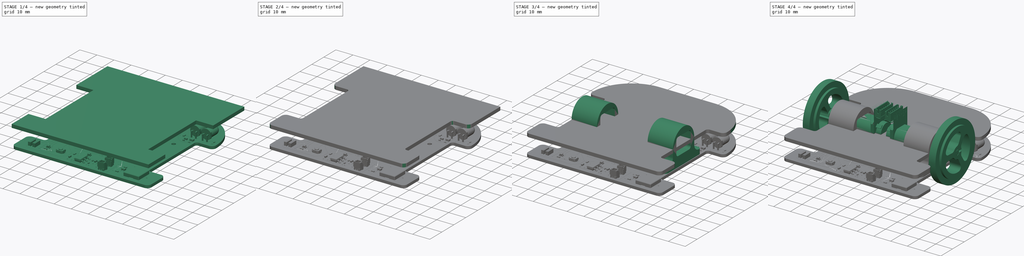
[diagram: build sequence overview — one tinted view per stage of 4, left to right]
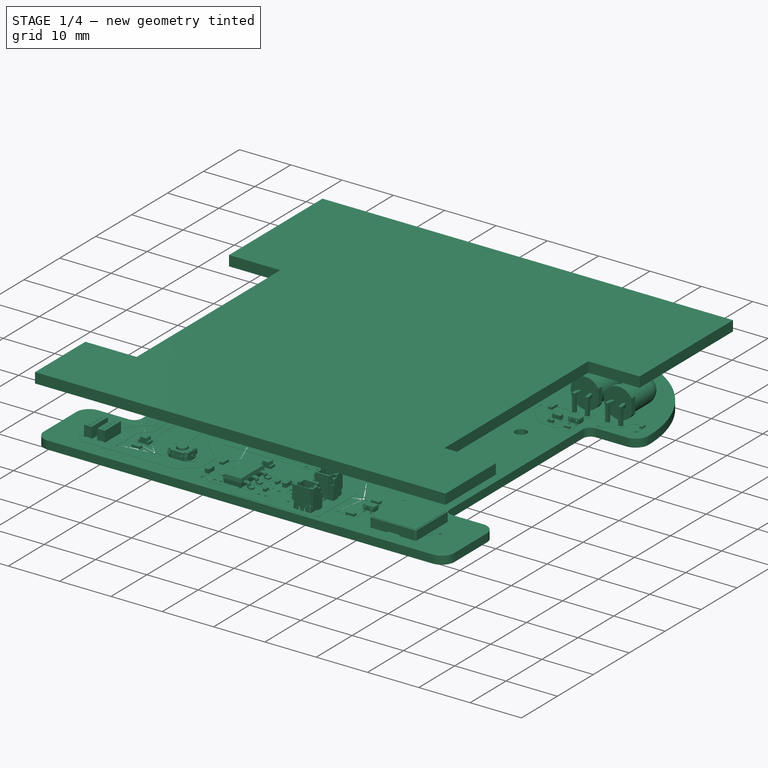
[diagram: stage 1 of 4 — iso view after this stage's code; geometry added in this stage tinted green]
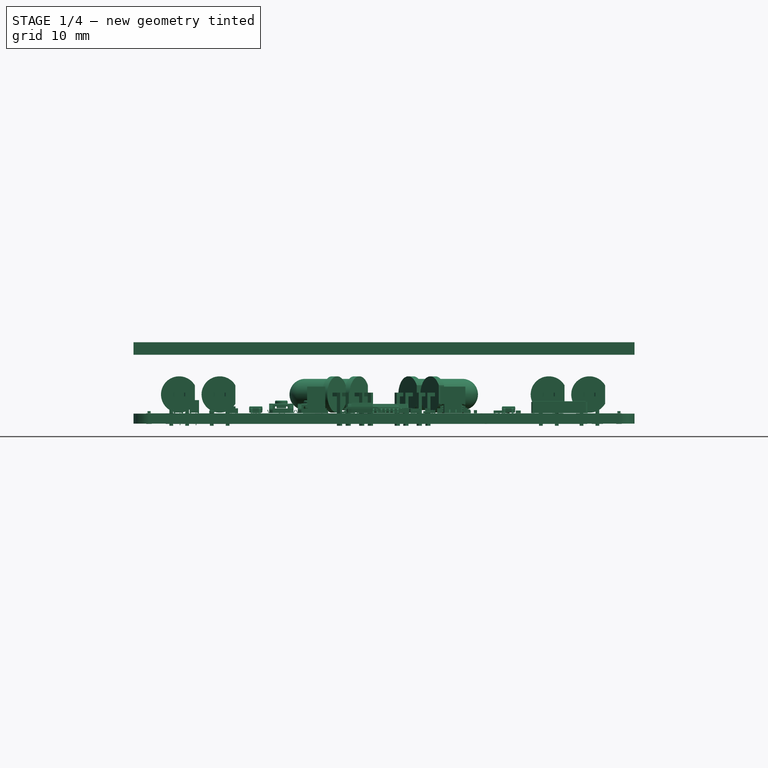
[diagram: stage 1 of 4 — front view after this stage's code; geometry added in this stage tinted green]
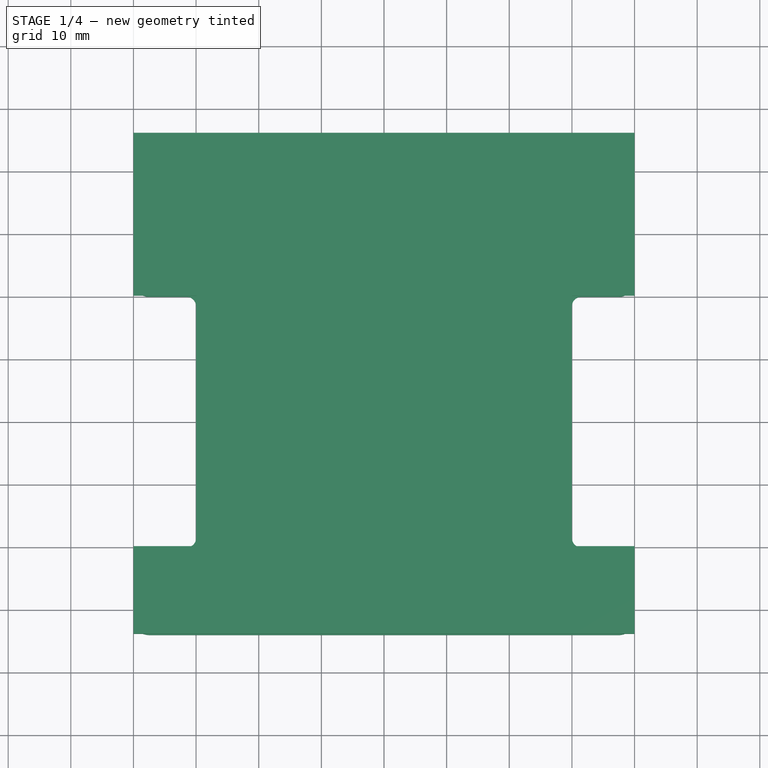
[diagram: stage 1 of 4 — top view after this stage's code; geometry added in this stage tinted green]
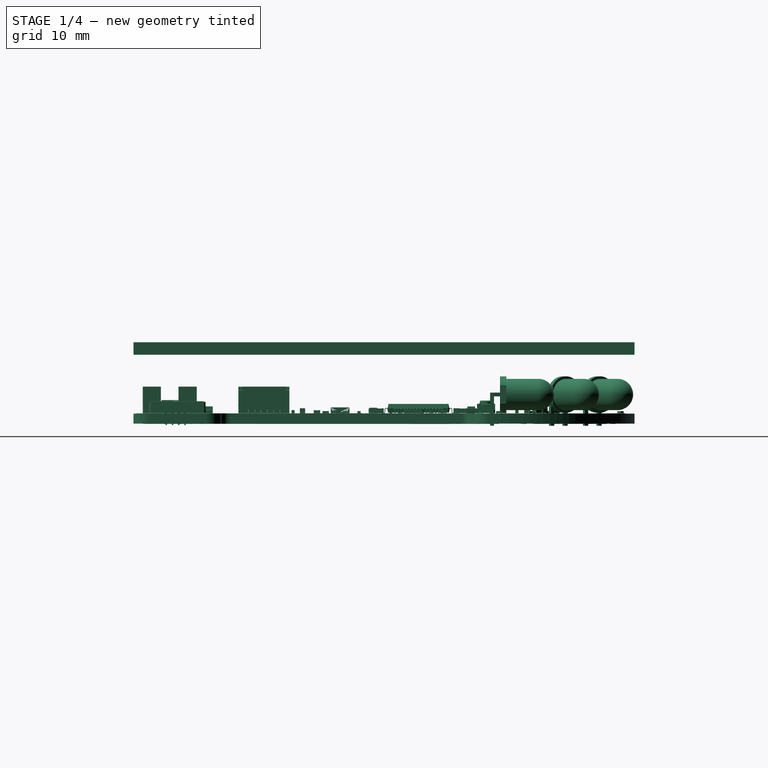
[diagram: stage 1 of 4 — right view after this stage's code; geometry added in this stage tinted green]
FCSTD DOCUMENT  (FreeCAD 0.21R33771 (Git))
Label: Bot_3d
License: All rights reserved
LicenseURL: http://en.wikipedia.org/wiki/All_rights_reserved
objects: Part::FeaturePython×5, PartDesign::Fillet×4, App::FeaturePython×3, Part::Part2DObjectPython×3, Sketcher::SketchObject×2, PartDesign::Pad×1, PartDesign::Body×1
note: 21 computed .brp shape members not serialized (recipe doc carries the construction recipe); baked Part::Feature solids carry a one-line shape summary decoded from their .brp

FEATURE [App::FeaturePython] planeCoincident_001_mirror001  label="planeCoincident_001__Pad"  # a2plus constraint (typed FeaturePython)
  Object1 = Pad
  Object2 = b_Mix_001_
  ParentTreeObject = -> b_Mix_001_
  SubElement1 = Face5
  SubElement2 = Face1305
  Suppressed = false
  Type = plane
  directionConstraint = 1
  offset = 0
FEATURE [App::FeaturePython] planeCoincident_002_mirror001  label="planeCoincident_002__Pad"  # a2plus constraint (typed FeaturePython)
  Object1 = Pad
  Object2 = b_Mix_001_
  ParentTreeObject = -> b_Mix_001_
  SubElement1 = Face1
  SubElement2 = Face1734
  Suppressed = false
  Type = plane
  directionConstraint = 1
  offset = 0
FEATURE [App::FeaturePython] planeCoincident_003_mirror001  label="planeCoincident_003__Pad"  # a2plus constraint (typed FeaturePython)
  Object1 = Pad
  Object2 = b_Mix_001_001
  ParentTreeObject = -> b_Mix_001_001
  SubElement1 = Face6
  SubElement2 = Face1305
  Suppressed = false
  Type = plane
  directionConstraint = 1
  offset = 0
FEATURE [Sketcher::SketchObject] Sketch
  FullyConstrained = false
  MapMode = 5
  Support = -> [XY_Plane]
  sketch-geometry (12):
    g0: LineSegment StartX=-40 StartY=46 StartZ=0 EndX=40 EndY=46 EndZ=0
    g1: LineSegment StartX=40 StartY=46 StartZ=0 EndX=40 EndY=20 EndZ=0
    g2: LineSegment StartX=40 StartY=-34 StartZ=0 EndX=-40 EndY=-34 EndZ=0
    g3: LineSegment StartX=-40 StartY=-34 StartZ=0 EndX=-40 EndY=-20 EndZ=0
    g4: LineSegment StartX=40 StartY=-20 StartZ=0 EndX=30 EndY=-20 EndZ=0
    g5: LineSegment StartX=30 StartY=-20 StartZ=0 EndX=30 EndY=20 EndZ=0
    g6: LineSegment StartX=30 StartY=20 StartZ=0 EndX=40 EndY=20 EndZ=0
    g7: LineSegment StartX=-40 StartY=20 StartZ=0 EndX=-30 EndY=20 EndZ=0
    g8: LineSegment StartX=-30 StartY=20 StartZ=0 EndX=-30 EndY=-20 EndZ=0
    g9: LineSegment StartX=-30 StartY=-20 StartZ=0 EndX=-40 EndY=-20 EndZ=0
    g10: LineSegment StartX=-40 StartY=20 StartZ=0 EndX=-40 EndY=46 EndZ=0
    g11: LineSegment StartX=40 StartY=-20 StartZ=0 EndX=40 EndY=-34 EndZ=0
  constraints (37):
    c: Coincident(g0,g1)
    c: Coincident(g11,g2)
    c: Coincident(g2,g3)
    c: Coincident(g10,g0)
    c: Horizontal(g0)
    c: Horizontal(g2)
    c: Vertical(g1)
    c: Vertical(g3)
    c: DistanceX(g2,g2) = 80
    c: DistanceY(g11,g1) = 80
    c: DistanceY(g-1,g0) = 46
    c: DistanceX(g2,g-1) = 40
    c: Coincident(g4,g5)
    c: Coincident(g5,g6)
    c: Horizontal(g4)
    c: Horizontal(g6)
    c: Vertical(g5)
    c: DistanceX(g6,g6) = 10
    c: DistanceY(g4,g6) = 40
    c: DistanceY(g5,g0) = 26
    c: DistanceX(g11,g4) = 0
    c: Coincident(g7,g8)
    c: Coincident(g8,g9)
    c: Horizontal(g7)
    c: Horizontal(g9)
    c: Vertical(g8)
    c: DistanceX(g9,g9) = 10
    c: DistanceY(g9,g7) = 40
    c: DistanceY(g7,g0) = 26
    c: DistanceX(g9,g2) = 0
    c: PointOnObject(g3,g9)
    c: PointOnObject(g11,g4)
    c: Coincident(g1,g6)
    c: Equal(g6,g4)
    c: Coincident(g7,g10)
    c: Parallel(g10,g1)
    c: Equal(g9,g7)
FEATURE [PartDesign::Pad] Pad
  Direction = (0,0,1)
  Length = 2
  Length2 = 10
  Profile = -> Sketch
  ReferenceAxis = -> Sketch [N_Axis]
  Type = 0
FEATURE [Part::Part2DObjectPython] Shape2DView001  # Draft 2D object (typed FeaturePython)
  AutoUpdate = true
  Base = -> b_Motor_mount_001_001
  Clip = false
  FuseArch = false
  HiddenLines = false
  InPlace = true
  OnlySolids = false
  Projection = (0,0,1)
  ProjectionMode = 0
  SegmentLength = 0.05
  Tessellation = false
  VisibleOnly = false
FEATURE [Part::Part2DObjectPython] Shape2DView002  # Draft 2D object (typed FeaturePython)
  AutoUpdate = true
  Base = -> b_Motor_mount_001_
  Clip = false
  FuseArch = false
  HiddenLines = false
  InPlace = true
  OnlySolids = false
  Projection = (0,0,1)
  ProjectionMode = 0
  SegmentLength = 0.05
  Tessellation = false
  VisibleOnly = false
FEATURE [Sketcher::SketchObject] Sketch001
  ExternalGeometry = -> [Fillet003]
  FullyConstrained = false
  MapMode = 5
  Placement = pos=(0,0,2) rot=(0,0,1;0rad)
  Support = -> [Fillet003]
  sketch-geometry (25):
    g0: LineSegment StartX=-84 StartY=84 StartZ=0 EndX=-84 EndY=-84 EndZ=0
    g1: LineSegment StartX=-84 StartY=-84 StartZ=0 EndX=84 EndY=-84 EndZ=0
    g2: LineSegment StartX=84 StartY=-84 StartZ=0 EndX=84 EndY=84 EndZ=0
    g3: LineSegment StartX=84 StartY=84 StartZ=0 EndX=-84 EndY=84 EndZ=0
    g4: GeomPoint X=0 Y=0 Z=0
    g5: LineSegment StartX=23 StartY=33.5 StartZ=0 EndX=36 EndY=33.5 EndZ=0
    g6: LineSegment StartX=36 StartY=33.5 StartZ=0 EndX=36 EndY=22 EndZ=0
    g7: LineSegment StartX=36 StartY=22 StartZ=0 EndX=23 EndY=22 EndZ=0
    g8: LineSegment StartX=23 StartY=22 StartZ=0 EndX=23 EndY=33.5 EndZ=0
    g9: LineSegment StartX=-36 StartY=22 StartZ=0 EndX=-23 EndY=22 EndZ=0
    g10: LineSegment StartX=-36 StartY=33.5 StartZ=0 EndX=-36 EndY=22 EndZ=0
    g11: LineSegment StartX=-23 StartY=33.5 StartZ=0 EndX=-36 EndY=33.5 EndZ=0
    g12: LineSegment StartX=-23 StartY=22 StartZ=0 EndX=-23 EndY=33.5 EndZ=0
    g13: LineSegment StartX=1.8e-15 StartY=41.334 StartZ=0 EndX=9.66325 EndY=47.5687 EndZ=0
    g14: LineSegment StartX=9.66325 StartY=47.5687 StartZ=0 EndX=16.7112 EndY=36.645 EndZ=0
    g15: LineSegment StartX=16.7112 StartY=36.645 StartZ=0 EndX=7.04793 EndY=30.4103 EndZ=0
    g16: LineSegment StartX=7.04793 StartY=30.4103 StartZ=0 EndX=1.8e-15 EndY=41.334 EndZ=0
    g17: LineSegment StartX=3.52396 StartY=35.8721 StartZ=0 EndX=13.1872 EndY=42.1068 EndZ=0
    g18: LineSegment StartX=84 StartY=84 StartZ=0 EndX=-11.9205 EndY=22.1123 EndZ=0
    g19: LineSegment StartX=5.28595 StartY=33.1412 StartZ=0 EndX=104.78 EndY=97.3345 EndZ=0
    g20: LineSegment StartX=-16.7113 StartY=36.6423 StartZ=0 EndX=-7.04816 EndY=30.4074 EndZ=0
    g21: LineSegment StartX=-7.04816 StartY=30.4074 StartZ=0 EndX=0 EndY=41.3309 EndZ=0
    g22: LineSegment StartX=0 StartY=41.3309 StartZ=0 EndX=-9.66312 EndY=47.5658 EndZ=0
    g23: LineSegment StartX=-9.66312 StartY=47.5658 StartZ=0 EndX=-16.7113 EndY=36.6423 EndZ=0
    g24: LineSegment StartX=0 StartY=53.3564 StartZ=0 EndX=0 EndY=18.4715 EndZ=0
  constraints (63):
    c: Coincident(g0,g1)
    c: Coincident(g1,g2)
    c: Coincident(g2,g3)
    c: Coincident(g3,g0)
    c: Horizontal(g1)
    c: Horizontal(g3)
    c: Vertical(g0)
    c: Vertical(g2)
    c: Symmetric(g1,g0,g4)
    c: Coincident(g4,g-1)
    c: DistanceY(g2,g2) = 168
    c: DistanceX(g3,g3) = 168
    c: Coincident(g5,g6)
    c: Coincident(g6,g7)
    c: Coincident(g7,g8)
    c: Coincident(g8,g5)
    c: Horizontal(g5)
    c: Horizontal(g7)
    c: Vertical(g6)
    c: Vertical(g8)
    c: DistanceY(g6,g6) = 11.5
    c: DistanceX(g7,g7) = 13
    c: DistanceY(g-6,g6) = 2
    c: DistanceX(g6,g-5) = 4
    c: Coincident(g11,g10)
    c: Coincident(g10,g9)
    c: Coincident(g9,g12)
    c: Coincident(g12,g11)
    c: Horizontal(g11)
    c: Horizontal(g9)
    c: Vertical(g10)
    c: Vertical(g12)
    c: Coincident(g13,g14)
    c: Coincident(g14,g15)
    c: Coincident(g15,g16)
    c: Coincident(g16,g13)
    c: Equal(g15,g13)
    c: Equal(g16,g14)
    c: Distance(g15) = 11.5
    c: Distance(g16) = 13
    c: Perpendicular(g16,g15)
    c: PointOnObject(g17,g16)
    c: Distance(g17,g14) = 6.5
    c: PointOnObject(g13,g-2)
    c: Coincident(g18,g2)
    c: Parallel(g17,g18)
    c: PointOnObject(g17,g14)
    c: Distance(g15,g17) = 6.5
    c: PointOnObject(g19,g16)
    c: Distance(g15,g19) = 3.25
    c: Perpendicular(g19,g16)
    c: Coincident(g22,g23)
    c: Coincident(g23,g20)
    c: Coincident(g20,g21)
    c: Coincident(g21,g22)
    c: Equal(g20,g22)
    c: Equal(g21,g23)
    c: Distance(g20) = 11.5
    c: Distance(g21) = 13
    c: Perpendicular(g21,g20)
    c: PointOnObject(g24,g-2)
    c: PointOnObject(g24,g-2)
    c: Angle(g24,g13) = 2.14379
FEATURE [PartDesign::Body] Body
  Group = -> [Sketch,Pad,Fillet,Fillet001,Fillet002,Fillet003,Sketch001]
  Origin = -> Origin
  Placement = pos=(0,0,-11) rot=(0,0,1;0rad)
  Tip = -> Fillet003
FEATURE [Part::FeaturePython] b_Bot_PCB1_001_  label="Bot_PCB1_001"  # a2plus imported part (geometry in sourceFile) (typed FeaturePython)
  Placement = pos=(0,6,-11) rot=(0,0,1;0rad)
  a2p_Version = 0.4.65
  fixedPosition = false
  objectType = a2pPart
  sourceFile = .\..\Bot_PCB\Bot_PCB.step
  subassemblyImport = false
  timeLastImport = 1.72796e+09
  updateColors = true
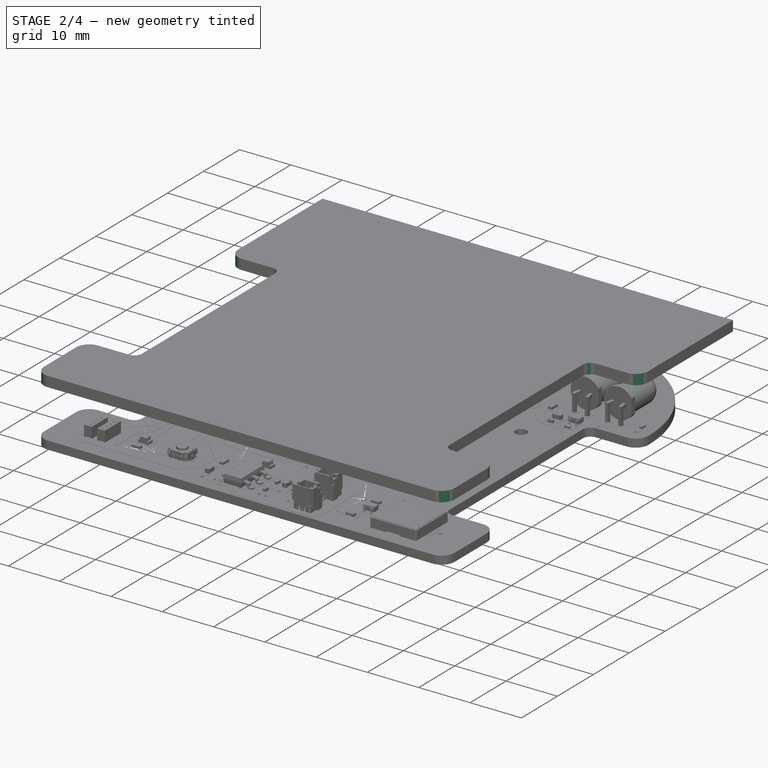
[diagram: stage 2 of 4 — iso view after this stage's code; geometry added in this stage tinted green]
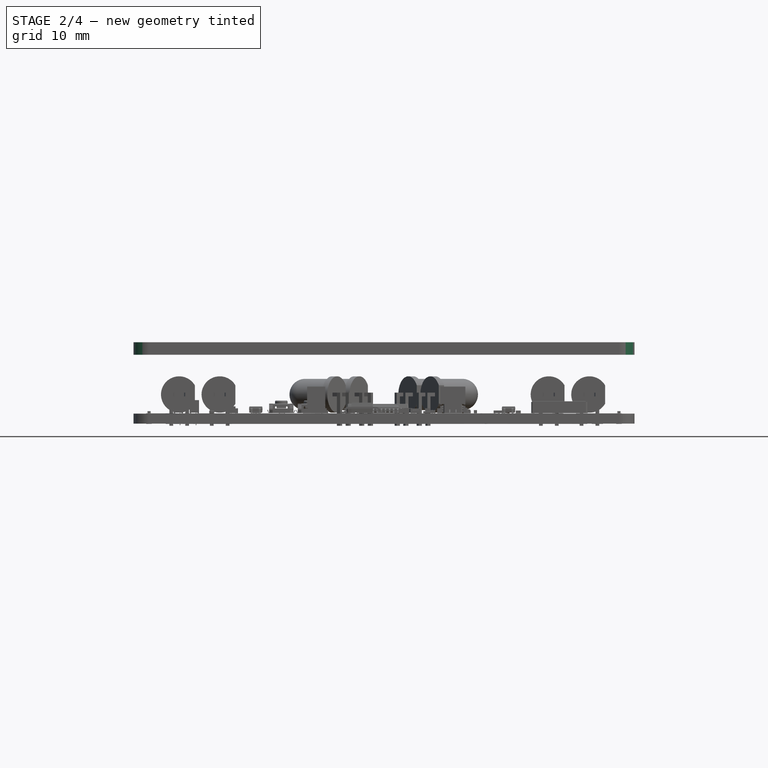
[diagram: stage 2 of 4 — front view after this stage's code; geometry added in this stage tinted green]
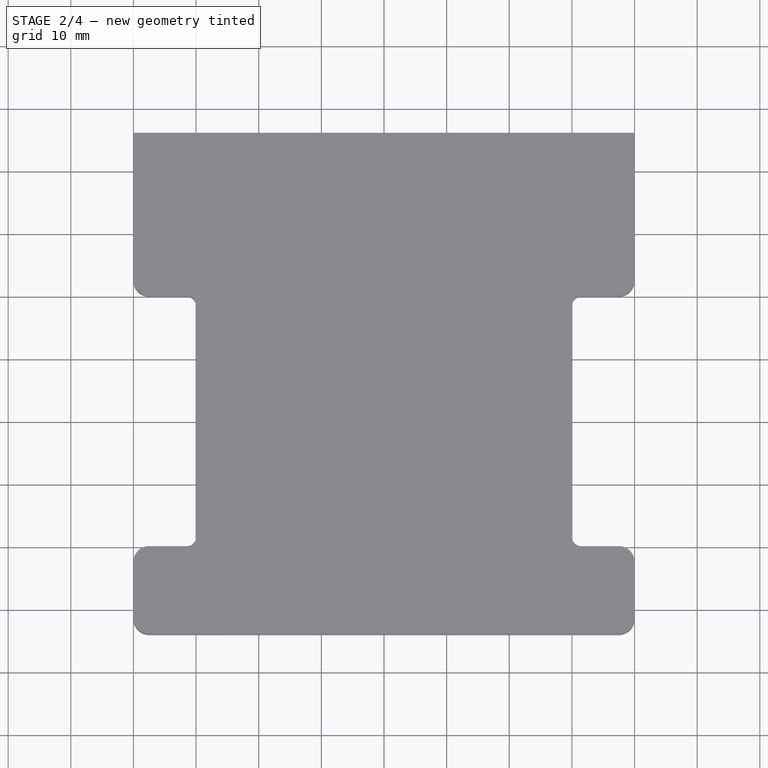
[diagram: stage 2 of 4 — top view after this stage's code; geometry added in this stage tinted green]
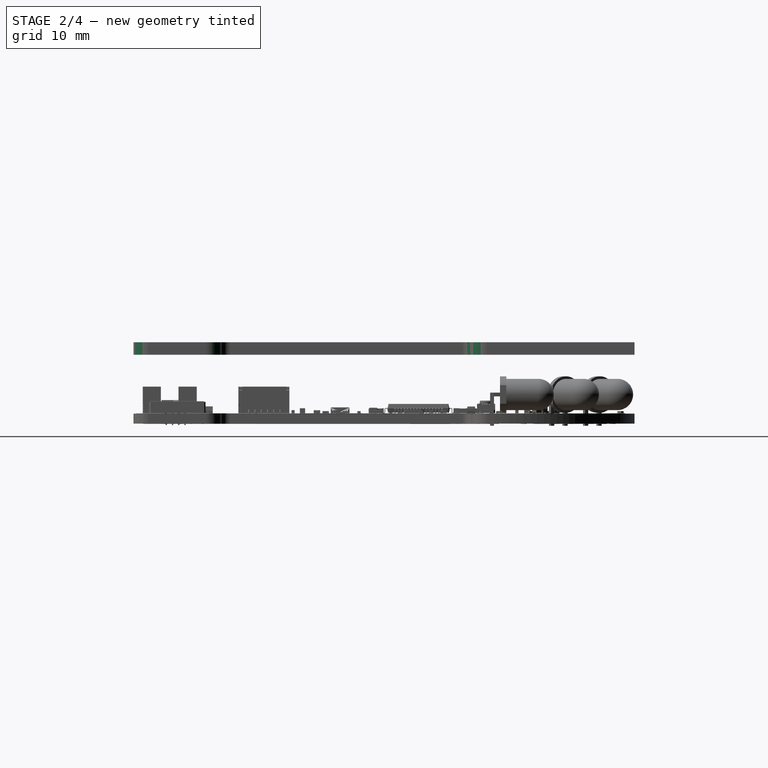
[diagram: stage 2 of 4 — right view after this stage's code; geometry added in this stage tinted green]
FEATURE [PartDesign::Fillet] Fillet
  Base = -> Pad [Edge32,Edge29,Edge11,Edge14]
  BaseFeature = -> Pad
  Radius = 1.5
  SupportTransform = false
  UseAllEdges = false
FEATURE [PartDesign::Fillet] Fillet001
  Base = -> Fillet [Edge47,Edge41,Edge3,Edge40]
  BaseFeature = -> Fillet
  Radius = 2.5
  SupportTransform = false
  UseAllEdges = false
FEATURE [PartDesign::Fillet] Fillet002
  Base = -> Fillet001 [Edge54,Edge56]
  BaseFeature = -> Fillet001
  Radius = 2.5
  SupportTransform = false
  UseAllEdges = false
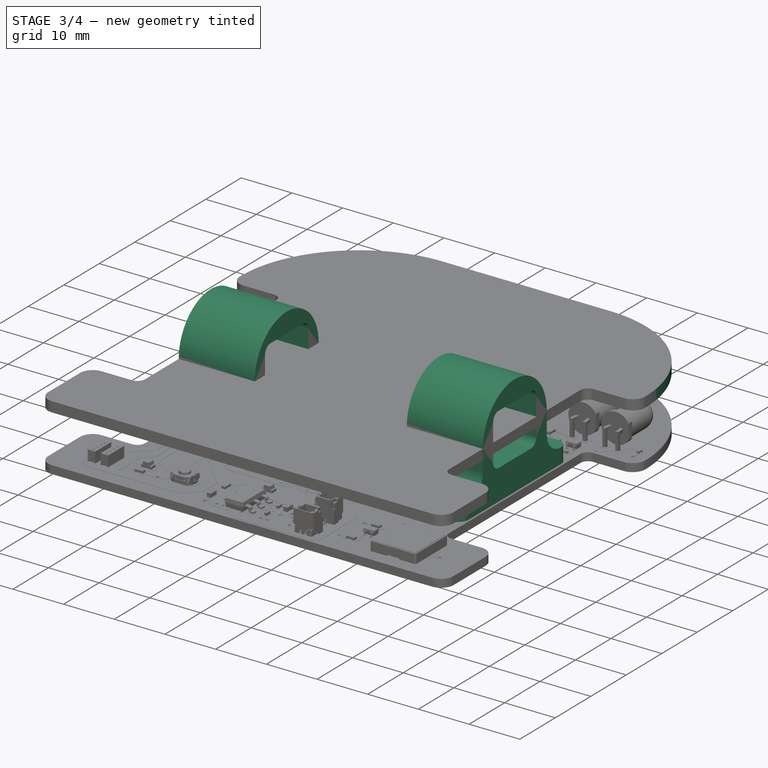
[diagram: stage 3 of 4 — iso view after this stage's code; geometry added in this stage tinted green]
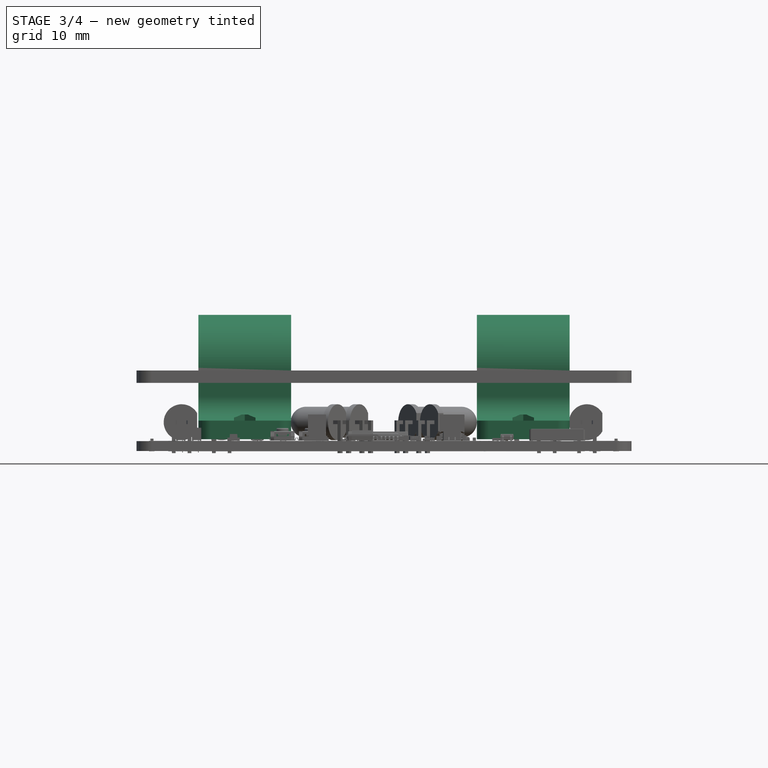
[diagram: stage 3 of 4 — front view after this stage's code; geometry added in this stage tinted green]
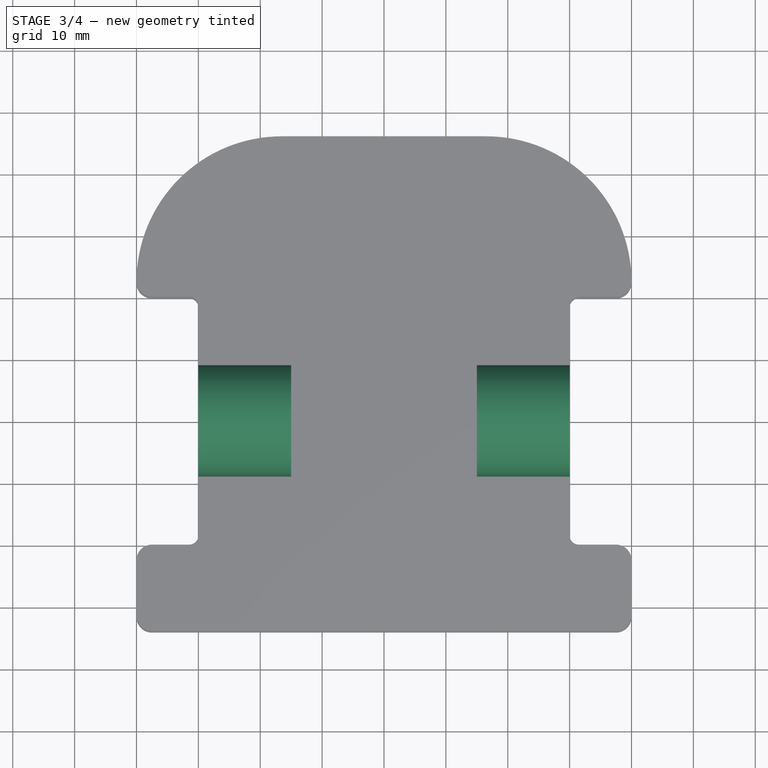
[diagram: stage 3 of 4 — top view after this stage's code; geometry added in this stage tinted green]
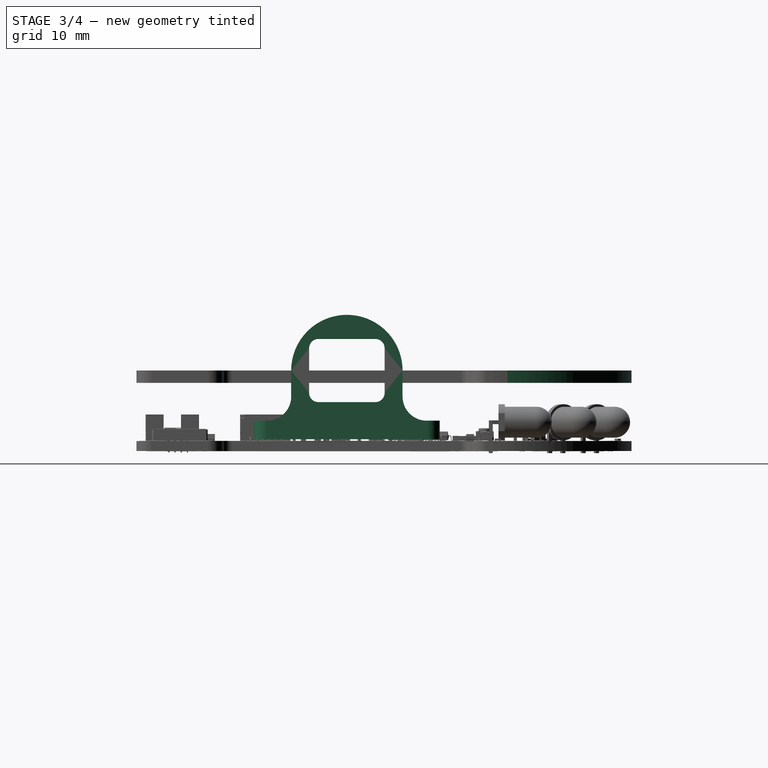
[diagram: stage 3 of 4 — right view after this stage's code; geometry added in this stage tinted green]
FEATURE [PartDesign::Fillet] Fillet003
  Base = -> Fillet002 [Edge60,Edge56]
  BaseFeature = -> Fillet002
  Radius = 23.49
  SupportTransform = false
  UseAllEdges = false
FEATURE [Part::Part2DObjectPython] Shape2DView  # Draft 2D object (typed FeaturePython)
  AutoUpdate = true
  Base = -> Fillet003
  Clip = false
  FuseArch = false
  HiddenLines = false
  InPlace = true
  OnlySolids = false
  Projection = (0,0,1)
  ProjectionMode = 0
  SegmentLength = 0.05
  Tessellation = false
  VisibleOnly = false
FEATURE [Part::FeaturePython] b_Motor_mount_001_  label="Motor_mount_001"  # a2plus imported part (geometry in sourceFile) (typed FeaturePython)
  Placement = pos=(22.5,0,2) rot=(0,0,1;0rad)
  a2p_Version = 0.4.65
  fixedPosition = false
  objectType = a2pPart
  sourceFile = .\Motor_mount.FCStd
  subassemblyImport = false
  timeLastImport = 1.7271e+09
  updateColors = true
FEATURE [Part::FeaturePython] b_Motor_mount_001_001  label="Motor_mount_002"  # a2plus imported part (geometry in sourceFile) (typed FeaturePython)
  Placement = pos=(-22.5,0,2) rot=(0,0,1;0rad)
  a2p_Version = 0.4.65
  fixedPosition = false
  objectType = a2pPart
  sourceFile = .\Motor_mount.FCStd
  subassemblyImport = false
  timeLastImport = 1.7271e+09
  updateColors = true
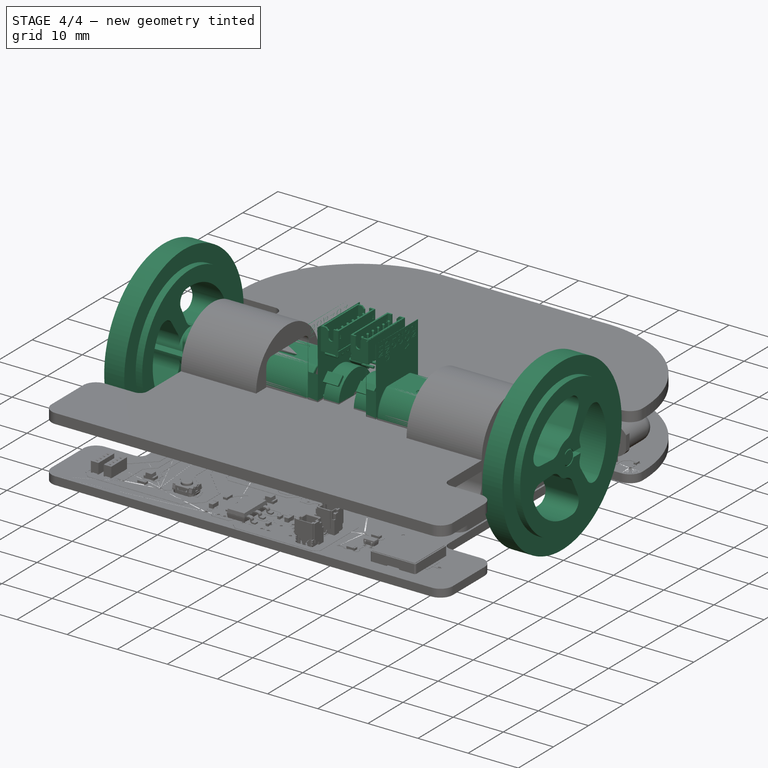
[diagram: stage 4 of 4 — iso view after this stage's code; geometry added in this stage tinted green]
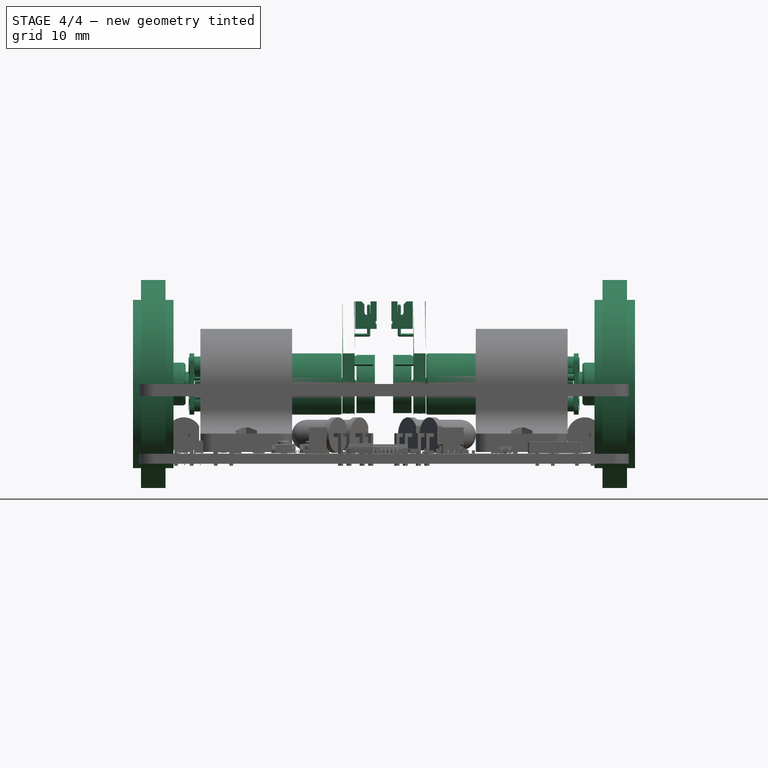
[diagram: stage 4 of 4 — front view after this stage's code; geometry added in this stage tinted green]
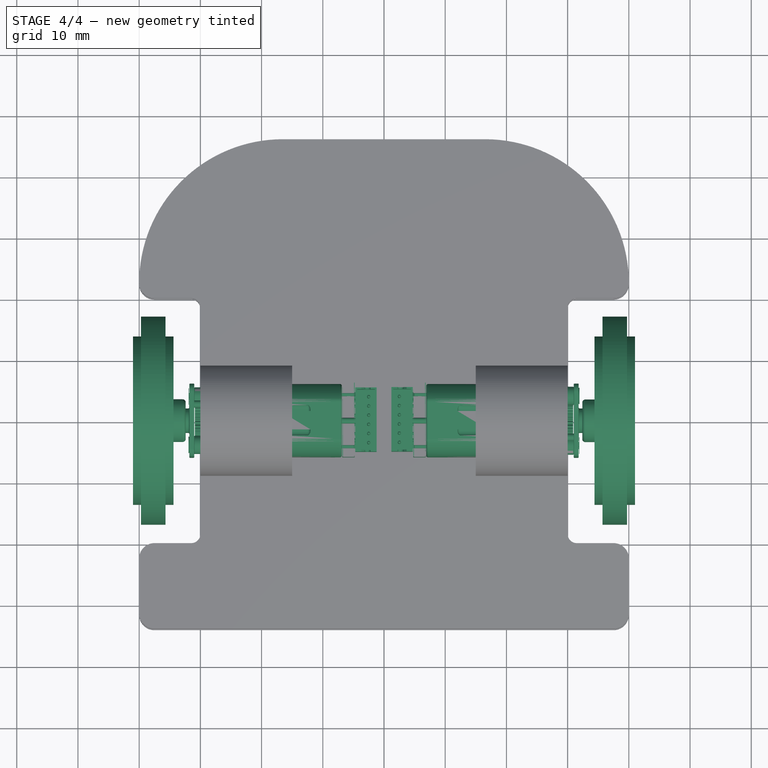
[diagram: stage 4 of 4 — top view after this stage's code; geometry added in this stage tinted green]
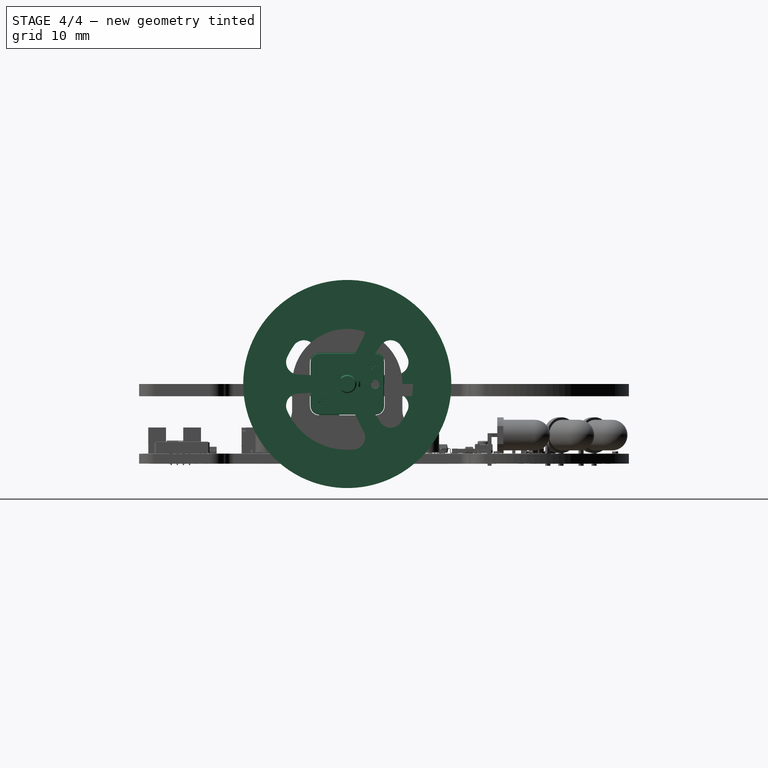
[diagram: stage 4 of 4 — right view after this stage's code; geometry added in this stage tinted green]
FEATURE [Part::FeaturePython] b_Mix_001_  label="Mix_001"  # a2plus imported part (geometry in sourceFile) (typed FeaturePython)
  Placement = pos=(22,0,2) rot=(0,0,1;0rad)
  a2p_Version = 0.4.65
  fixedPosition = true
  objectType = a2pPart
  sourceFile = .\Mix.FCStd
  subassemblyImport = true
  timeLastImport = 1.72675e+09
  updateColors = true
FEATURE [Part::FeaturePython] b_Mix_001_001  label="Mix_002"  # a2plus imported part (geometry in sourceFile) (typed FeaturePython)
  Placement = pos=(-22,0,2) rot=(0,0,1;3.14159rad)
  a2p_Version = 0.4.65
  fixedPosition = false
  objectType = a2pPart
  sourceFile = .\Mix.FCStd
  subassemblyImport = true
  timeLastImport = 1.72675e+09
  updateColors = true
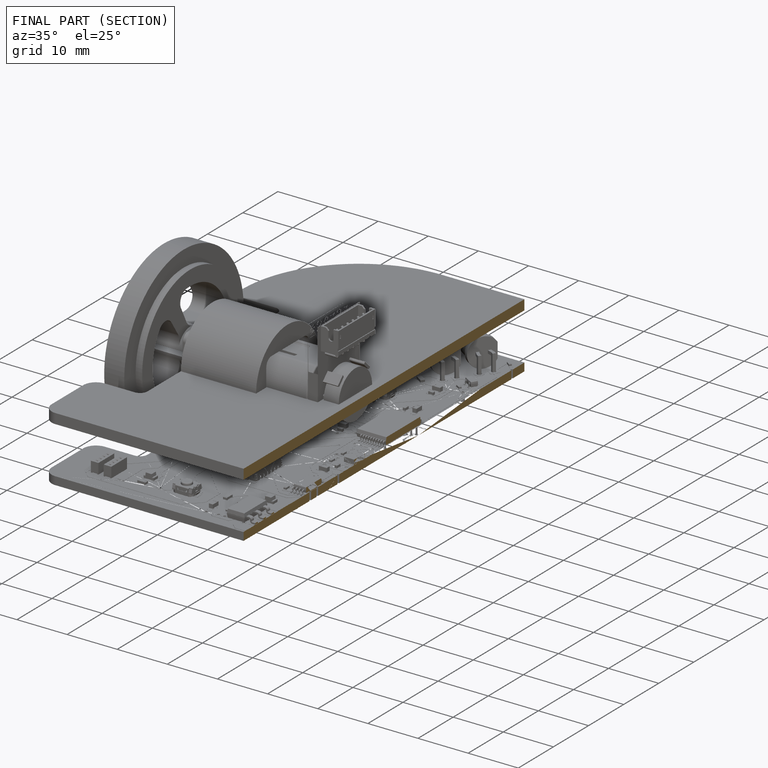
[diagram: finished part — half-section view (interior)]
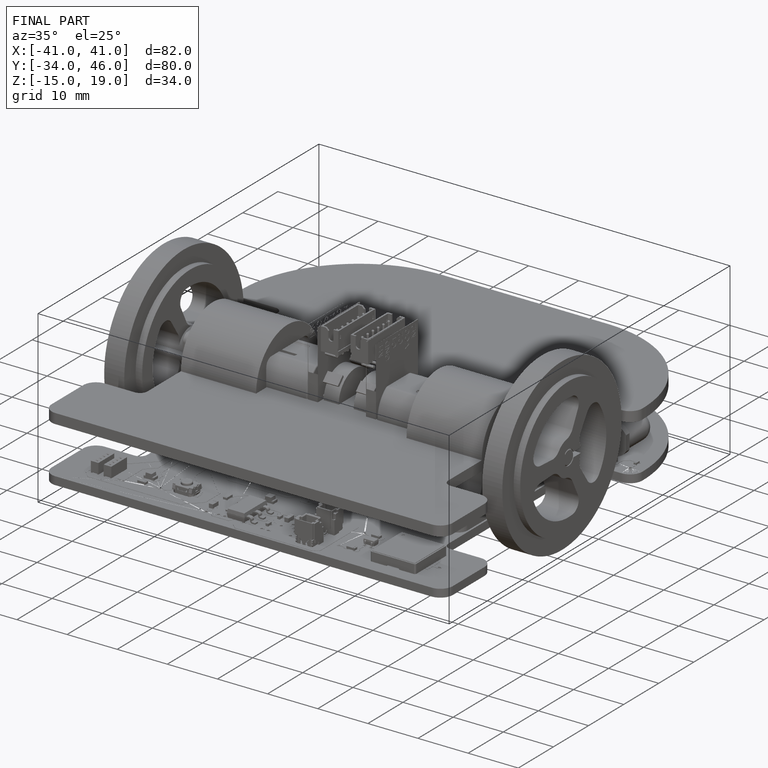
[diagram: finished part — iso view with bounding-box wireframe]
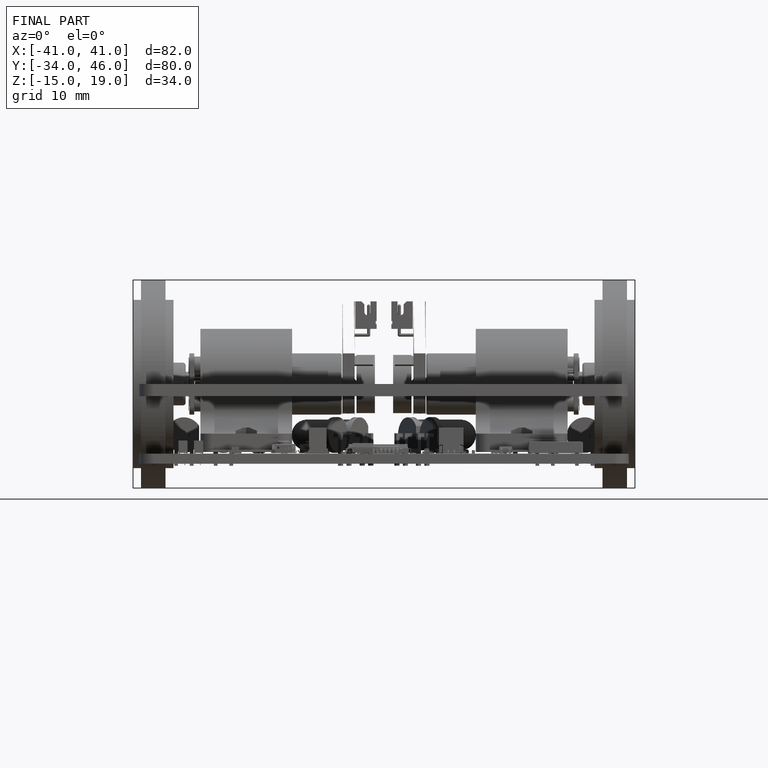
[diagram: finished part — front view with bounding-box wireframe]
